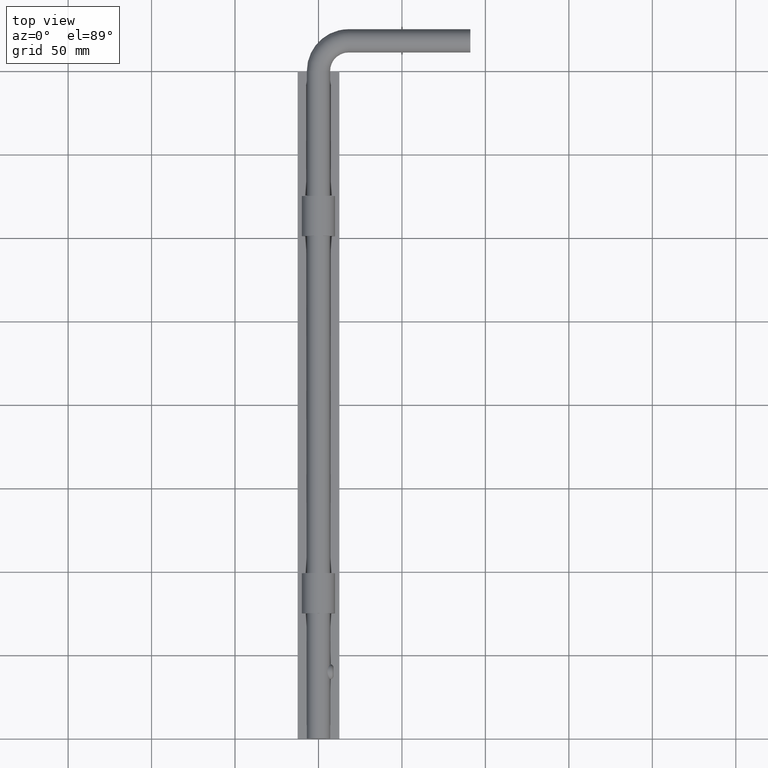
[diagram: clean part render]
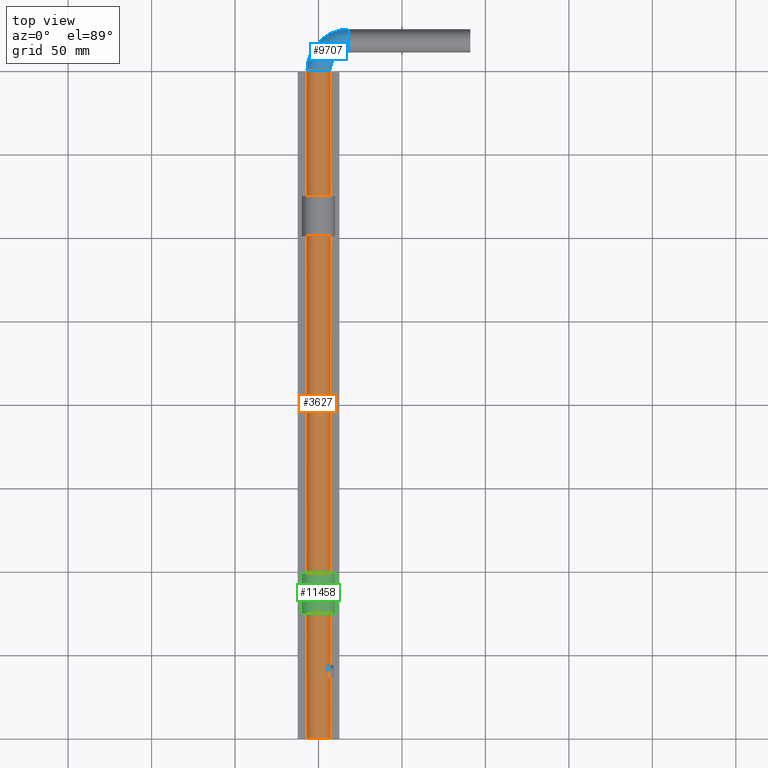
[diagram: same view with three faces highlighted in distinct colors, each labeled with its STEP entity id]
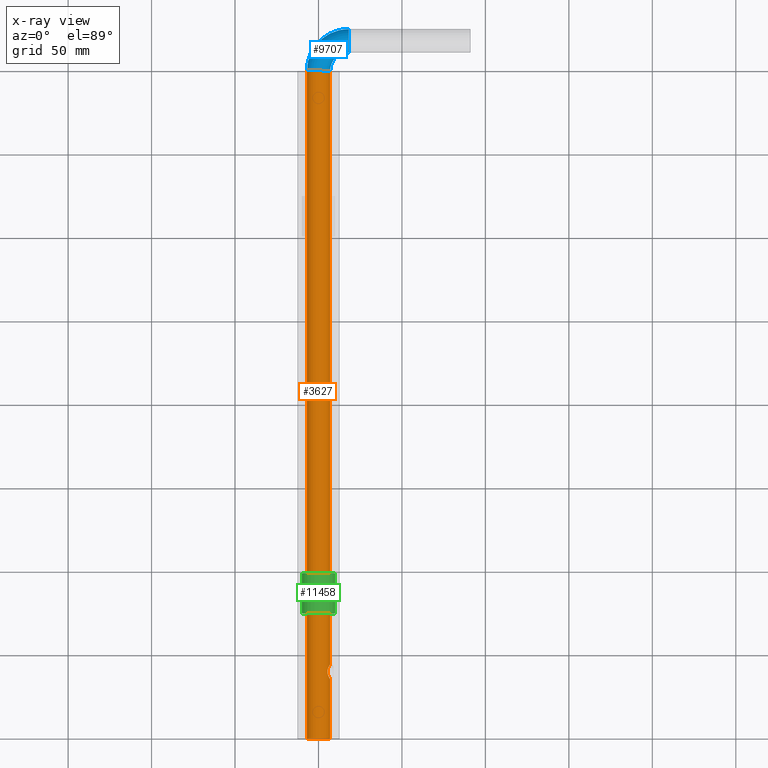
[diagram: x-ray of the same camera — body ghosted, the three highlighted faces saturated]
A machine part, top view with three faces highlighted in distinct colors.
The next image is the same camera in x-ray (body ghosted, the three faces saturated) — at least one of them is partly hidden behind the body in this view.
Their STEP definitions:

[orange] entity #3627 — the highlighted cylindrical surface (bore or boss wall) has radius 7 mm, axis along (-0, -1, -0).
#19 = CARTESIAN_POINT ( 'NONE',  ( 7.000000000000000000, -155.4999999999999716, 16.50000000000000000 ) ) ;
#61 = CARTESIAN_POINT ( 'NONE',  ( 5.560816162410971764, -158.5041753059840630, 12.24589891406758824 ) ) ;
#108 = CARTESIAN_POINT ( 'NONE',  ( 6.440063168147497130, -156.4304205979388769, 13.74480835525195666 ) ) ;
#167 = EDGE_LOOP ( 'NONE', ( #2363 ) ) ;
#286 = EDGE_LOOP ( 'NONE', ( #3077, #611 ) ) ;
#410 = CARTESIAN_POINT ( 'NONE',  ( 5.820355771162640579, -162.2743956652728627, 20.39348303831154041 ) ) ;
#451 = CARTESIAN_POINT ( 'NONE',  ( 6.960636085308322230, -155.5614195863430496, 17.25599901379554524 ) ) ;
#473 = DIRECTION ( 'NONE',  ( 0.000000000000000000, 0.000000000000000000, -1.000000000000000000 ) ) ;
#611 = ORIENTED_EDGE ( 'NONE', *, *, #3457, .F. ) ;
#628 = VERTEX_POINT ( 'NONE', #2315 ) ;
#1068 = CARTESIAN_POINT ( 'NONE',  ( 6.706967645625177887, -155.9699093181658895, 14.47641642815130325 ) ) ;
#1112 = CARTESIAN_POINT ( 'NONE',  ( 6.847096352508783568, -155.7407812494681139, 15.01825204195187702 ) ) ;
#1156 = CARTESIAN_POINT ( 'NONE',  ( 5.728313122694461690, -157.9681569069608997, 12.47427258624868429 ) ) ;
#1340 = CARTESIAN_POINT ( 'NONE',  ( 6.994934782565985110, -155.5078678087156447, 16.80603975998194954 ) ) ;
#1356 = CARTESIAN_POINT ( 'NONE',  ( 0.000000000000000000, -199.9999999999999716, 16.50000000000000000 ) ) ;
#1376 = CARTESIAN_POINT ( 'NONE',  ( 6.846476311345307764, -164.2582516245459772, 17.98519171447792431 ) ) ;
#1377 = EDGE_CURVE ( 'NONE', #5570, #628, #3534, .T. ) ;
#1415 = CARTESIAN_POINT ( 'NONE',  ( 6.127940863634445456, -157.0281499460403154, 19.89106908364755810 ) ) ;
#1459 = CARTESIAN_POINT ( 'NONE',  ( 6.704297813112717996, -164.0256773570473285, 18.53283623139157754 ) ) ;
#2315 = CARTESIAN_POINT ( 'NONE',  ( 7.000000000000000000, -155.4999999999999716, 16.50000000000000000 ) ) ;
#2321 = CARTESIAN_POINT ( 'NONE',  ( 6.902635374390446721, -164.3472488473924216, 17.70097986907761722 ) ) ;
#2363 = ORIENTED_EDGE ( 'NONE', *, *, #8408, .F. ) ;
#2364 = CARTESIAN_POINT ( 'NONE',  ( 7.000000000000007994, -155.5000000000000284, 16.65257339646955259 ) ) ;
#2441 = CARTESIAN_POINT ( 'NONE',  ( 6.975246779709423528, -155.5385869223453312, 17.10721109113273286 ) ) ;
#2987 = CARTESIAN_POINT ( 'NONE',  ( 6.902508794704960593, -164.3470508172963775, 15.29779510563144562 ) ) ;
#3077 = ORIENTED_EDGE ( 'NONE', *, *, #1377, .F. ) ;
#3250 = CARTESIAN_POINT ( 'NONE',  ( 6.704892737544065007, -155.9733480695911396, 18.53057588784479393 ) ) ;
#3328 = CARTESIAN_POINT ( 'NONE',  ( 5.722992545290621180, -162.0169982208485067, 20.53326461957550109 ) ) ;
#3457 = EDGE_CURVE ( 'NONE', #628, #5570, #3876, .T. ) ;
#3534 = B_SPLINE_CURVE_WITH_KNOTS ( 'NONE', 3,
 ( #8699, #9617, #4871, #8746, #9738, #2987, #4002, #4786, #11540, #9655, #6767, #4960, #3955, #5915, #10575, #11578, #9700, #11669, #10663, #6896, #11494, #3915, #61, #1156, #3826, #5827, #7703, #6852, #108, #6806, #1068, #1112, #10529, #5747, #8654, #19 ),
 .UNSPECIFIED., .F., .F.,
 ( 4, 2, 2, 2, 2, 2, 2, 2, 2, 2, 2, 2, 2, 2, 2, 2, 2, 4 ),
 ( 0.02172554707969810359, 0.02217799481252740942, 0.02263044254535671179, 0.02353533801101531653, 0.02444023347667392126, 0.02534512894233252600, 0.02625002440799113074, 0.02715491987364973547, 0.02805981533930834021, 0.02896471080496694495, 0.02986960627062554968, 0.03077450173628415442, 0.03167939720194275915, 0.03258429266760136389, 0.03348918813325996863, 0.03439408359891857336, 0.03529897906457717810, 0.03620387453023577590 ),
 .UNSPECIFIED. ) ;
#3627 = ADVANCED_FACE ( 'NONE', ( #8146, #12179, #10231 ), #9927, .T. ) ;
#3698 = ORIENTED_EDGE ( 'NONE', *, *, #8983, .T. ) ;
#3826 = CARTESIAN_POINT ( 'NONE',  ( 5.824826271524201182, -157.7141562970242603, 12.61312910917337859 ) ) ;
#3876 = B_SPLINE_CURVE_WITH_KNOTS ( 'NONE', 3,
 ( #8217, #2364, #1340, #2441, #451, #7253, #8055, #3250, #6268, #9080, #4215, #1415, #6177, #12011, #9162, #12048, #7215, #9124, #11887, #10125, #6226, #4382, #11087, #5177, #8133, #6311, #6141, #3328, #410, #7126, #11049, #4338, #10037, #4301, #1459, #1376, #2321, #11003, #5291, #9042 ),
 .UNSPECIFIED., .F., .F.,
 ( 4, 2, 2, 2, 2, 2, 2, 2, 2, 2, 2, 2, 2, 2, 2, 2, 2, 2, 2, 4 ),
 ( 0.007257803064073966789, 0.007709920064562229142, 0.008162037065050491494, 0.009066271066027000586, 0.009970505067003507943, 0.01087473906798001703, 0.01177897306895652613, 0.01268320706993303348, 0.01358744107090954258, 0.01403955807139779625, 0.01449167507188604993, 0.01539590907286255729, 0.01584802607335080923, 0.01630014307383906291, 0.01720437707481557027, 0.01810861107579207763, 0.01901284507676858498, 0.01991707907774508887, 0.02082131307872159623, 0.02172554707969810359 ),
 .UNSPECIFIED. ) ;
#3915 = CARTESIAN_POINT ( 'NONE',  ( 5.488963713898328045, -158.7910118832407420, 12.15518716799021703 ) ) ;
#3955 = CARTESIAN_POINT ( 'NONE',  ( 6.019123329603377037, -162.7434240121382913, 12.92148404954178709 ) ) ;
#4002 = CARTESIAN_POINT ( 'NONE',  ( 6.846085152115802153, -164.2576192022223438, 15.01313639684791745 ) ) ;
#4215 = CARTESIAN_POINT ( 'NONE',  ( 6.333790255802091984, -156.6240360606913100, 19.48899811873103260 ) ) ;
#4301 = CARTESIAN_POINT ( 'NONE',  ( 6.619680501074716616, -163.8842977241510823, 18.79016966750665318 ) ) ;
#4338 = CARTESIAN_POINT ( 'NONE',  ( 6.335108305516687466, -163.3785302392360848, 19.48638800786022074 ) ) ;
#4382 = CARTESIAN_POINT ( 'NONE',  ( 5.361733993258264164, -160.3021119624634707, 21.00020095718443969 ) ) ;
#4551 = VERTEX_POINT ( 'NONE', #8254 ) ;
#4786 = CARTESIAN_POINT ( 'NONE',  ( 6.704170333512289304, -164.0254613675773783, 14.46683856429141635 ) ) ;
#4871 = CARTESIAN_POINT ( 'NONE',  ( 6.995092457166530053, -164.4923775712499605, 16.19740925456770597 ) ) ;
#4960 = CARTESIAN_POINT ( 'NONE',  ( 6.123950751410497162, -162.9637097975678159, 13.10164969439211191 ) ) ;
#4968 = CARTESIAN_POINT ( 'NONE',  ( 0.000000000000000000, 200.0000000000000284, 16.50000000000000000 ) ) ;
#5177 = CARTESIAN_POINT ( 'NONE',  ( 5.460848094184475698, -161.0450191826362811, 20.87957015150358941 ) ) ;
#5291 = CARTESIAN_POINT ( 'NONE',  ( 6.999999999999998224, -164.4999999999999147, 16.80260419157429297 ) ) ;
#5570 = VERTEX_POINT ( 'NONE', #7387 ) ;
#5747 = CARTESIAN_POINT ( 'NONE',  ( 6.980118567378767125, -155.5307515703713364, 15.89553271533196721 ) ) ;
#5767 = AXIS2_PLACEMENT_3D ( 'NONE', #9417, #11171, #7385 ) ;
#5827 = CARTESIAN_POINT ( 'NONE',  ( 6.027808300657686580, -157.2375819920814592, 12.93602840837414369 ) ) ;
#5915 = CARTESIAN_POINT ( 'NONE',  ( 5.817546226219183048, -162.2672392347519121, 12.60233685774893431 ) ) ;
#6141 = CARTESIAN_POINT ( 'NONE',  ( 5.597742926178323586, -161.6128035853577956, 20.70359856832968859 ) ) ;
#6177 = CARTESIAN_POINT ( 'NONE',  ( 6.021448976414189858, -157.2515404078758934, 20.07459753230879329 ) ) ;
#6226 = CARTESIAN_POINT ( 'NONE',  ( 5.361988215430097959, -159.8444761167476429, 20.99989804272996707 ) ) ;
#6268 = CARTESIAN_POINT ( 'NONE',  ( 6.621082418905245071, -156.1132479262776371, 18.78652917702310887 ) ) ;
#6311 = CARTESIAN_POINT ( 'NONE',  ( 5.559315746981714490, -161.4747551048674836, 20.75406968893808823 ) ) ;
#6391 = CARTESIAN_POINT ( 'NONE',  ( 0.000000000000000000, -199.9999999999999716, 9.500000000000001776 ) ) ;
#6767 = CARTESIAN_POINT ( 'NONE',  ( 6.331313831681113058, -163.3713999753418307, 13.50566822645020615 ) ) ;
#6806 = CARTESIAN_POINT ( 'NONE',  ( 6.624060278787881728, -156.1082577070282866, 14.22243111366439550 ) ) ;
#6852 = CARTESIAN_POINT ( 'NONE',  ( 6.338218738447618072, -156.6157675429082019, 13.52037153461367147 ) ) ;
#6896 = CARTESIAN_POINT ( 'NONE',  ( 5.363021023733652193, -159.6743078759118362, 12.00133260322627748 ) ) ;
#7126 = CARTESIAN_POINT ( 'NONE',  ( 6.022053033643372189, -162.7498103715200273, 20.07360164714991768 ) ) ;
#7215 = CARTESIAN_POINT ( 'NONE',  ( 5.486740295371897780, -158.8009117968368287, 20.84760777848770275 ) ) ;
#7253 = CARTESIAN_POINT ( 'NONE',  ( 6.903245753571614962, -155.6517857182729756, 17.69714449822074442 ) ) ;
#7385 = DIRECTION ( 'NONE',  ( 0.000000000000000000, 0.000000000000000000, -1.000000000000000000 ) ) ;
#7387 = CARTESIAN_POINT ( 'NONE',  ( 7.000000000000000000, -164.4999999999999716, 16.50000000000000000 ) ) ;
#7703 = CARTESIAN_POINT ( 'NONE',  ( 6.132550298974644321, -157.0186939578970851, 13.11724529433554309 ) ) ;
#7754 = AXIS2_PLACEMENT_3D ( 'NONE', #4968, #7807, #7762 ) ;
#7762 = DIRECTION ( 'NONE',  ( 0.000000000000000000, 0.000000000000000000, -1.000000000000000000 ) ) ;
#7807 = DIRECTION ( 'NONE',  ( -0.000000000000000000, -1.000000000000000000, -0.000000000000000000 ) ) ;
#8055 = CARTESIAN_POINT ( 'NONE',  ( 6.845979632137344950, -155.7425622411673771, 17.98707361439456776 ) ) ;
#8133 = CARTESIAN_POINT ( 'NONE',  ( 5.490937849976518237, -161.1913477733217519, 20.84196983184773799 ) ) ;
#8146 = FACE_OUTER_BOUND ( 'NONE', #10744, .T. ) ;
#8217 = CARTESIAN_POINT ( 'NONE',  ( 7.000000000000000000, -155.4999999999999716, 16.50000000000000000 ) ) ;
#8254 = CARTESIAN_POINT ( 'NONE',  ( 0.000000000000000000, 200.0000000000000284, 9.500000000000001776 ) ) ;
#8408 = EDGE_CURVE ( 'NONE', #9809, #9809, #10143, .T. ) ;
#8654 = CARTESIAN_POINT ( 'NONE',  ( 7.000000000000007994, -155.5000000000000000, 16.19462998627272299 ) ) ;
#8699 = CARTESIAN_POINT ( 'NONE',  ( 7.000000000000000000, -164.4999999999999716, 16.50000000000000000 ) ) ;
#8746 = CARTESIAN_POINT ( 'NONE',  ( 6.975492027732624223, -164.4617963632738054, 15.89552451284774826 ) ) ;
#8983 = EDGE_CURVE ( 'NONE', #4551, #4551, #9993, .T. ) ;
#9042 = CARTESIAN_POINT ( 'NONE',  ( 7.000000000000000000, -164.4999999999999716, 16.50000000000000000 ) ) ;
#9080 = CARTESIAN_POINT ( 'NONE',  ( 6.434209706419842689, -156.4409040711388457, 19.26909615743599247 ) ) ;
#9124 = CARTESIAN_POINT ( 'NONE',  ( 5.413500734227906896, -159.2404846532076874, 20.93796269887659633 ) ) ;
#9162 = CARTESIAN_POINT ( 'NONE',  ( 5.724996688137660605, -157.9775232416120048, 20.53041201959972284 ) ) ;
#9417 = CARTESIAN_POINT ( 'NONE',  ( 0.000000000000000000, 200.0000000000000284, 16.50000000000000000 ) ) ;
#9617 = CARTESIAN_POINT ( 'NONE',  ( 6.999999999999998224, -164.4999999999999716, 16.34858722379983931 ) ) ;
#9655 = CARTESIAN_POINT ( 'NONE',  ( 6.433220469716646406, -163.5572764079791455, 13.72881058032449708 ) ) ;
#9700 = CARTESIAN_POINT ( 'NONE',  ( 5.484008453430250007, -161.1877071839361975, 12.14894981078259484 ) ) ;
#9738 = CARTESIAN_POINT ( 'NONE',  ( 6.960653052719673717, -164.4386086454124722, 15.74383193209426679 ) ) ;
#9809 = VERTEX_POINT ( 'NONE', #6391 ) ;
#9927 = CYLINDRICAL_SURFACE ( 'NONE', #7754, 6.999999999999999112 ) ;
#9993 = CIRCLE ( 'NONE', #5767, 6.999999999999999112 ) ;
#10037 = CARTESIAN_POINT ( 'NONE',  ( 6.435466418832517910, -163.5612956773423434, 19.26583061924537787 ) ) ;
#10058 = DIRECTION ( 'NONE',  ( 0.000000000000000000, -1.000000000000000000, 0.000000000000000000 ) ) ;
#10125 = CARTESIAN_POINT ( 'NONE',  ( 5.368732780004632943, -159.6904259880529651, 20.99189431837870501 ) ) ;
#10143 = CIRCLE ( 'NONE', #10762, 6.999999999999999112 ) ;
#10231 = FACE_BOUND ( 'NONE', #286, .T. ) ;
#10529 = CARTESIAN_POINT ( 'NONE',  ( 6.904275068993949382, -155.6501562626452824, 15.30902490178494624 ) ) ;
#10575 = CARTESIAN_POINT ( 'NONE',  ( 5.720122282410467385, -162.0088598115842160, 12.46268973685048564 ) ) ;
#10663 = CARTESIAN_POINT ( 'NONE',  ( 5.360851344004357699, -160.2877637767286672, 11.99874731710263553 ) ) ;
#10744 = EDGE_LOOP ( 'NONE', ( #3698 ) ) ;
#10762 = AXIS2_PLACEMENT_3D ( 'NONE', #1356, #10058, #473 ) ;
#11003 = CARTESIAN_POINT ( 'NONE',  ( 6.979708587332088321, -164.4686160490073519, 17.11024240563794407 ) ) ;
#11049 = CARTESIAN_POINT ( 'NONE',  ( 6.127076458132515668, -162.9701742808474876, 19.89279304590128206 ) ) ;
#11087 = CARTESIAN_POINT ( 'NONE',  ( 5.387737611242032543, -160.6021040648179223, 20.96970579694072612 ) ) ;
#11171 = DIRECTION ( 'NONE',  ( 0.000000000000000000, -1.000000000000000000, 0.000000000000000000 ) ) ;
#11494 = CARTESIAN_POINT ( 'NONE',  ( 5.390481819266720542, -159.3753209961767254, 12.03358902989834966 ) ) ;
#11540 = CARTESIAN_POINT ( 'NONE',  ( 6.618814963142085617, -163.8828599443062330, 14.20716226143472127 ) ) ;
#11578 = CARTESIAN_POINT ( 'NONE',  ( 5.553802670848449807, -161.4698445236121529, 12.23679123430041571 ) ) ;
#11669 = CARTESIAN_POINT ( 'NONE',  ( 5.386494493850010556, -160.5921339120128266, 12.02879618736667666 ) ) ;
#11887 = CARTESIAN_POINT ( 'NONE',  ( 5.394510651150811853, -159.3890257197260496, 20.96090361532275992 ) ) ;
#12011 = CARTESIAN_POINT ( 'NONE',  ( 5.820158500793173317, -157.7261426323679530, 20.39375786601998897 ) ) ;
#12048 = CARTESIAN_POINT ( 'NONE',  ( 5.558365240569226984, -158.5133092767489984, 20.75727424291093470 ) ) ;
#12179 = FACE_OUTER_BOUND ( 'NONE', #167, .T. ) ;

[blue] entity #9707 — the highlighted toroidal blend (fillet) surface has major radius 18 mm and minor (blend) radius 7 mm.
#53 = DIRECTION ( 'NONE',  ( -1.000000000000000000, 0.000000000000000000, 0.000000000000000000 ) ) ;
#1589 = FACE_OUTER_BOUND ( 'NONE', #6488, .T. ) ;
#2625 = FACE_OUTER_BOUND ( 'NONE', #5530, .T. ) ;
#2804 = DIRECTION ( 'NONE',  ( 0.000000000000000000, 0.000000000000000000, -1.000000000000000000 ) ) ;
#3090 = EDGE_CURVE ( 'NONE', #5156, #5156, #6331, .T. ) ;
#3606 = AXIS2_PLACEMENT_3D ( 'NONE', #6719, #2804, #53 ) ;
#4163 = ORIENTED_EDGE ( 'NONE', *, *, #8983, .F. ) ;
#4551 = VERTEX_POINT ( 'NONE', #8254 ) ;
#5156 = VERTEX_POINT ( 'NONE', #9291 ) ;
#5530 = EDGE_LOOP ( 'NONE', ( #4163 ) ) ;
#5767 = AXIS2_PLACEMENT_3D ( 'NONE', #9417, #11171, #7385 ) ;
#6331 = CIRCLE ( 'NONE', #8832, 6.999999999999999112 ) ;
#6488 = EDGE_LOOP ( 'NONE', ( #8793 ) ) ;
#6719 = CARTESIAN_POINT ( 'NONE',  ( 17.99999999999993250, 200.0000000000000284, 16.50000000000000000 ) ) ;
#7385 = DIRECTION ( 'NONE',  ( 0.000000000000000000, 0.000000000000000000, -1.000000000000000000 ) ) ;
#8058 = TOROIDAL_SURFACE ( 'NONE', #3606, 17.99999999999993250, 7.000000000000000000 ) ;
#8254 = CARTESIAN_POINT ( 'NONE',  ( 0.000000000000000000, 200.0000000000000284, 9.500000000000001776 ) ) ;
#8271 = CARTESIAN_POINT ( 'NONE',  ( 17.99999999999993250, 218.0000000000000000, 16.50000000000000000 ) ) ;
#8793 = ORIENTED_EDGE ( 'NONE', *, *, #3090, .T. ) ;
#8832 = AXIS2_PLACEMENT_3D ( 'NONE', #8271, #10145, #12196 ) ;
#8983 = EDGE_CURVE ( 'NONE', #4551, #4551, #9993, .T. ) ;
#9291 = CARTESIAN_POINT ( 'NONE',  ( 17.99999999999993250, 218.0000000000000000, 9.500000000000001776 ) ) ;
#9417 = CARTESIAN_POINT ( 'NONE',  ( 0.000000000000000000, 200.0000000000000284, 16.50000000000000000 ) ) ;
#9707 = ADVANCED_FACE ( 'NONE', ( #2625, #1589 ), #8058, .T. ) ;
#9993 = CIRCLE ( 'NONE', #5767, 6.999999999999999112 ) ;
#10145 = DIRECTION ( 'NONE',  ( -1.000000000000000000, 1.608122649676636601E-16, 0.000000000000000000 ) ) ;
#11171 = DIRECTION ( 'NONE',  ( 0.000000000000000000, -1.000000000000000000, 0.000000000000000000 ) ) ;
#12196 = DIRECTION ( 'NONE',  ( 0.000000000000000000, 0.000000000000000000, -1.000000000000000000 ) ) ;

[green] entity #11458 — the highlighted cylindrical surface (bore or boss wall) has radius 10 mm, axis along (-0, 1, -0).
#664 = CIRCLE ( 'NONE', #8022, 10.00000000000000178 ) ;
#721 = CARTESIAN_POINT ( 'NONE',  ( 0.000000000000000000, -100.9999999999999858, 16.50000000000000000 ) ) ;
#817 = VERTEX_POINT ( 'NONE', #7378 ) ;
#972 = EDGE_LOOP ( 'NONE', ( #1964 ) ) ;
#1494 = CARTESIAN_POINT ( 'NONE',  ( 0.000000000000000000, -125.0000000000000000, 6.499999999999999112 ) ) ;
#1532 = EDGE_CURVE ( 'NONE', #817, #817, #664, .T. ) ;
#1626 = DIRECTION ( 'NONE',  ( 0.000000000000000000, 0.000000000000000000, 1.000000000000000000 ) ) ;
#1964 = ORIENTED_EDGE ( 'NONE', *, *, #1532, .T. ) ;
#2821 = EDGE_CURVE ( 'NONE', #10712, #10712, #3186, .T. ) ;
#3186 = CIRCLE ( 'NONE', #10748, 10.00000000000000178 ) ;
#3363 = FACE_OUTER_BOUND ( 'NONE', #972, .T. ) ;
#3560 = DIRECTION ( 'NONE',  ( 0.000000000000000000, 0.000000000000000000, -1.000000000000000000 ) ) ;
#3595 = DIRECTION ( 'NONE',  ( -0.000000000000000000, 1.000000000000000000, -0.000000000000000000 ) ) ;
#5021 = FACE_OUTER_BOUND ( 'NONE', #5144, .T. ) ;
#5144 = EDGE_LOOP ( 'NONE', ( #9457 ) ) ;
#5393 = DIRECTION ( 'NONE',  ( 0.000000000000000000, -1.000000000000000000, 0.000000000000000000 ) ) ;
#5661 = DIRECTION ( 'NONE',  ( 0.000000000000000000, 0.000000000000000000, -1.000000000000000000 ) ) ;
#7378 = CARTESIAN_POINT ( 'NONE',  ( 0.000000000000000000, -100.9999999999999858, 6.499999999999999112 ) ) ;
#7985 = AXIS2_PLACEMENT_3D ( 'NONE', #8467, #3595, #1626 ) ;
#8022 = AXIS2_PLACEMENT_3D ( 'NONE', #721, #5393, #3560 ) ;
#8467 = CARTESIAN_POINT ( 'NONE',  ( 0.000000000000000000, -125.0000000000000000, 16.50000000000000000 ) ) ;
#8698 = DIRECTION ( 'NONE',  ( 0.000000000000000000, -1.000000000000000000, 0.000000000000000000 ) ) ;
#9457 = ORIENTED_EDGE ( 'NONE', *, *, #2821, .F. ) ;
#9616 = CARTESIAN_POINT ( 'NONE',  ( 0.000000000000000000, -125.0000000000000000, 16.50000000000000000 ) ) ;
#10712 = VERTEX_POINT ( 'NONE', #1494 ) ;
#10728 = CYLINDRICAL_SURFACE ( 'NONE', #7985, 10.00000000000000178 ) ;
#10748 = AXIS2_PLACEMENT_3D ( 'NONE', #9616, #8698, #5661 ) ;
#11458 = ADVANCED_FACE ( 'NONE', ( #5021, #3363 ), #10728, .T. ) ;